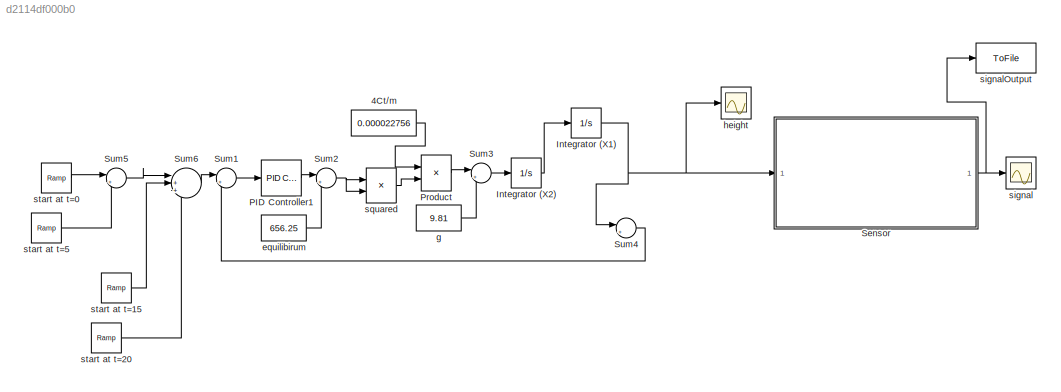
MODEL slx_d2114df000b0
KIND model
CONFIG AbsTol = auto
CONFIG EnableMultiTasking = off
CONFIG FixedStep = auto
CONFIG MaxStep = auto
CONFIG MinStep = auto
CONFIG RelTol = 1e-3
CONFIG SampleTimeConstraint = Unconstrained
CONFIG Solver = VariableStepAuto
CONFIG SolverName = VariableStepAuto
CONFIG StartTime = 0.0
CONFIG StopTime = 35
BLOCK [Constant] 4Ct//m
  Value = 0.000022756
BLOCK [Integrator] Integrator (X1)
  Ports = [1, 1]
BLOCK [Integrator] Integrator (X2)
  Ports = [1, 1]
BLOCK [Reference] PID Controller1  REF=simulink/Continuous/PID Controller
  Ports = [1, 1]
  SourceBlock = simulink/Continuous/PID Controller
  SourceProductBaseCode = SL
  SourceProductName = Simulink
  SourceType = PID 1dof
BLOCK [Product] Product
  InputSameDT = off
  OutDataTypeStr = Inherit: Inherit via internal rule
  Ports = [2, 1]
  RndMeth = Floor
  SaturateOnIntegerOverflow = off
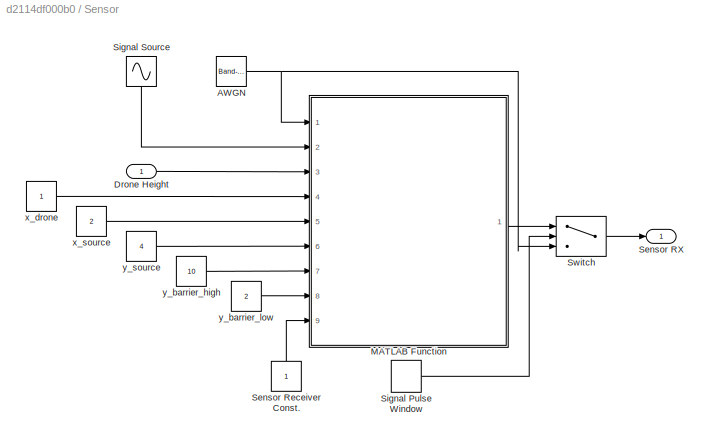
BLOCK [SubSystem] Sensor
  Ports = [1, 1]
  RequestExecContextInheritance = off
BLOCK [Reference] Sensor/AWGN  REF=simulink/Sources/Band-Limited
White Noise
  Ports = [0, 1]
  SourceBlock = simulink/Sources/Band-Limited\nWhite Noise
  SourceProductBaseCode = SL
  SourceProductName = Simulink
  SourceType = Band-Limited White Noise.
BLOCK [Inport] Sensor/Drone Height
  IconDisplay = Port number
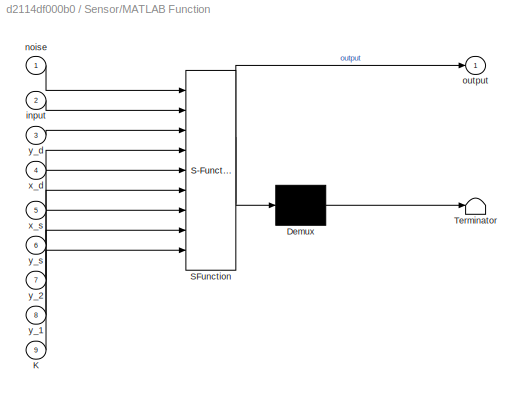
BLOCK [SubSystem] Sensor/MATLAB Function
  ErrorFcn = Stateflow.Translate.translate
  PermitHierarchicalResolution = ExplicitOnly
  Ports = [9, 1]
  RequestExecContextInheritance = off
  SFBlockType = MATLAB Function
  TreatAsAtomicUnit = on
BLOCK [Demux] Sensor/MATLAB Function/ Demux 
  Outputs = 1
  Ports = [1, 1]
BLOCK [S-Function] Sensor/MATLAB Function/ SFunction 
  EnableBusSupport = on
  FunctionName = sf_sfun
  PortCounts = [9 2]
  Ports = [9, 2]
  SFcnIsStateOwnerBlock = off
  SFunctionDeploymentMode = off
  Tag = Stateflow S-Function sensor_model 2
BLOCK [Terminator] Sensor/MATLAB Function/ Terminator 
BLOCK [Inport] Sensor/MATLAB Function/K
  IconDisplay = Port number
  Port = 9
BLOCK [Inport] Sensor/MATLAB Function/input
  IconDisplay = Port number
  Port = 2
BLOCK [Inport] Sensor/MATLAB Function/noise
  IconDisplay = Port number
BLOCK [Outport] Sensor/MATLAB Function/output
  IconDisplay = Port number
BLOCK [Inport] Sensor/MATLAB Function/x_d
  IconDisplay = Port number
  Port = 4
BLOCK [Inport] Sensor/MATLAB Function/x_s
  IconDisplay = Port number
  Port = 5
BLOCK [Inport] Sensor/MATLAB Function/y_1
  IconDisplay = Port number
  Port = 8
BLOCK [Inport] Sensor/MATLAB Function/y_2
  IconDisplay = Port number
  Port = 7
BLOCK [Inport] Sensor/MATLAB Function/y_d
  IconDisplay = Port number
  Port = 3
BLOCK [Inport] Sensor/MATLAB Function/y_s
  IconDisplay = Port number
  Port = 6
BLOCK [Outport] Sensor/Sensor RX
  IconDisplay = Port number
BLOCK [Constant] Sensor/Sensor Receiver Const.
BLOCK [DiscretePulseGenerator] Sensor/Signal Pulse Window
  Period = 20
  Ports = [0, 1]
  PulseType = Time based
  PulseWidth = 75
BLOCK [Sin] Sensor/Signal Source
  Amplitude = 10
  Frequency = 6.2831853
  Ports = [0, 1]
  SampleTime = 0
BLOCK [Switch] Sensor/Switch
  Criteria = u2 > Threshold
  InputSameDT = off
  SaturateOnIntegerOverflow = off
BLOCK [Constant] Sensor/x_drone
BLOCK [Constant] Sensor/x_source
  Value = 2
BLOCK [Constant] Sensor/y_barrier_high
  Value = 10
BLOCK [Constant] Sensor/y_barrier_low
  Value = 2
BLOCK [Constant] Sensor/y_source
  Value = 4
BLOCK [Sum] Sum1
  IconShape = round
  InputSameDT = off
  Inputs = |+-
  OutDataTypeStr = Inherit: Inherit via internal rule
  Ports = [2, 1]
  SaturateOnIntegerOverflow = off
BLOCK [Sum] Sum2
  IconShape = round
  InputSameDT = off
  Inputs = |++
  OutDataTypeStr = Inherit: Inherit via internal rule
  Ports = [2, 1]
  SaturateOnIntegerOverflow = off
BLOCK [Sum] Sum3
  IconShape = round
  InputSameDT = off
  Inputs = |+-
  OutDataTypeStr = Inherit: Inherit via internal rule
  Ports = [2, 1]
  SaturateOnIntegerOverflow = off
BLOCK [Sum] Sum4
  IconShape = round
  InputSameDT = off
  Inputs = |++
  OutDataTypeStr = Inherit: Inherit via internal rule
  Ports = [2, 1]
  SaturateOnIntegerOverflow = off
BLOCK [Sum] Sum5
  IconShape = round
  InputSameDT = off
  Inputs = |+-
  OutDataTypeStr = Inherit: Inherit via internal rule
  Ports = [2, 1]
  SaturateOnIntegerOverflow = off
BLOCK [Sum] Sum6
  IconShape = round
  InputSameDT = off
  Inputs = |++-
  OutDataTypeStr = Inherit: Inherit via internal rule
  Ports = [3, 1]
  SaturateOnIntegerOverflow = off
BLOCK [Constant] equilibirum
  Value = 656.25
BLOCK [Constant] g
  Value = 9.81
BLOCK [Scope] height
  Floating = off
  NumInputPorts = 1
  Ports = [1]
  ScopeSpecificationString = Simulink.scopes.TimeScopeBlockCfg('CurrentConfiguration', extmgr.ConfigurationSet(extmgr.Configuration('Core','General UI',true),extmgr.Configuration('Core','Source UI',true),extmgr.Configuration('Sources','WiredSimulink',true,'DataLoggingVariableName','ScopeData1'),extmgr.Configuration('Visuals','Time Domain',true,'SerializedDisplays',{struct('MinYLimReal','-1.85141','MaxYLimReal','16.66267','YLa...<+1408ch>
BLOCK [Scope] signal
  Floating = off
  NumInputPorts = 1
  Ports = [1]
  ScopeSpecificationString = Simulink.scopes.TimeScopeBlockCfg('CurrentConfiguration', extmgr.ConfigurationSet(extmgr.Configuration('Core','General UI',true),extmgr.Configuration('Core','Source UI',true),extmgr.Configuration('Sources','WiredSimulink',true),extmgr.Configuration('Visuals','Time Domain',true,'SerializedDisplays',{struct('MinYLimReal','-4.51927','MaxYLimReal','4.57928','YLabelReal','','MinYLimMag','0.00000','MaxY...<+1372ch>
BLOCK [ToFile] signalOutput
  Filename = signalOutput
  MatrixName = raw
  Ports = [1]
BLOCK [Product] squared
  InputSameDT = off
  OutDataTypeStr = Inherit: Inherit via internal rule
  Ports = [2, 1]
  RndMeth = Floor
  SaturateOnIntegerOverflow = off
BLOCK [Reference] start at t=0  REF=simulink/Sources/Ramp
  Ports = [0, 1]
  SourceBlock = simulink/Sources/Ramp
  SourceProductBaseCode = SL
  SourceProductName = Simulink
  SourceType = Ramp
BLOCK [Reference] start at t=15  REF=simulink/Sources/Ramp
  Ports = [0, 1]
  SourceBlock = simulink/Sources/Ramp
  SourceProductBaseCode = SL
  SourceProductName = Simulink
  SourceType = Ramp
BLOCK [Reference] start at t=20  REF=simulink/Sources/Ramp
  Ports = [0, 1]
  SourceBlock = simulink/Sources/Ramp
  SourceProductBaseCode = SL
  SourceProductName = Simulink
  SourceType = Ramp
BLOCK [Reference] start at t=5  REF=simulink/Sources/Ramp
  Ports = [0, 1]
  SourceBlock = simulink/Sources/Ramp
  SourceProductBaseCode = SL
  SourceProductName = Simulink
  SourceType = Ramp
LINE 4Ct//m:1 -> Product:1
NET Integrator (X1):1 -> Sensor:1, Sum4:1, height:1
LINE Integrator (X2):1 -> Integrator (X1):1
LINE PID Controller1:1 -> Sum2:1
LINE Product:1 -> Sum3:1
NET Sensor/AWGN:1 -> Sensor/MATLAB Function:1, Sensor/Switch:3
LINE Sensor/Drone Height:1 -> Sensor/MATLAB Function:3
LINE Sensor/MATLAB Function:1 -> Sensor/Switch:1
LINE Sensor/Sensor Receiver Const.:1 -> Sensor/MATLAB Function:9
LINE Sensor/Signal Pulse Window:1 -> Sensor/Switch:2
LINE Sensor/Signal Source:1 -> Sensor/MATLAB Function:2
LINE Sensor/Switch:1 -> Sensor/Sensor RX:1
LINE Sensor/x_drone:1 -> Sensor/MATLAB Function:4
LINE Sensor/x_source:1 -> Sensor/MATLAB Function:5
LINE Sensor/y_barrier_high:1 -> Sensor/MATLAB Function:7
LINE Sensor/y_barrier_low:1 -> Sensor/MATLAB Function:8
LINE Sensor/y_source:1 -> Sensor/MATLAB Function:6
NET Sensor:1 -> signal:1, signalOutput:1
LINE Sum1:1 -> PID Controller1:1
NET Sum2:1 -> squared:1, squared:2
LINE Sum3:1 -> Integrator (X2):1
LINE Sum4:1 -> Sum1:2
LINE Sum5:1 -> Sum6:1
LINE Sum6:1 -> Sum1:1
LINE equilibirum:1 -> Sum2:2
LINE g:1 -> Sum3:2
LINE squared:1 -> Product:2
LINE start at t=0:1 -> Sum5:1
LINE start at t=15:1 -> Sum6:2
LINE start at t=20:1 -> Sum6:3
LINE start at t=5:1 -> Sum5:2
note: NET lines group one-source signal fan-out (src -> all destinations, sorted); 1:1 wires keep LINE
CHART Sensor/MATLAB Function states=1 transitions=1
  STATE_LABEL 'eML_blk_kernel()'
  STATE_LABEL 'SCRIPT:\nfunction output = sensor_filter(noise,input,y_d,x_d,x_s,y_s,y_2,y_1,K)\n    \n    % Line of Sight Aperture\n    c = y_d + (y_s-y_d)*x_d/(x_s+x_d);\n    \n    % Drone-Sensor Distance\n    d = sqrt((x_d+x_s)^2 + (y_d-y_s)^2);\n    \n    % Sensor Reading\n    if (c >= y_1) && (c <= y_2)\n        output = sqrt(K)*input/d + noise;\n    else\n        output = noise;\n    end\n\nend\n'
